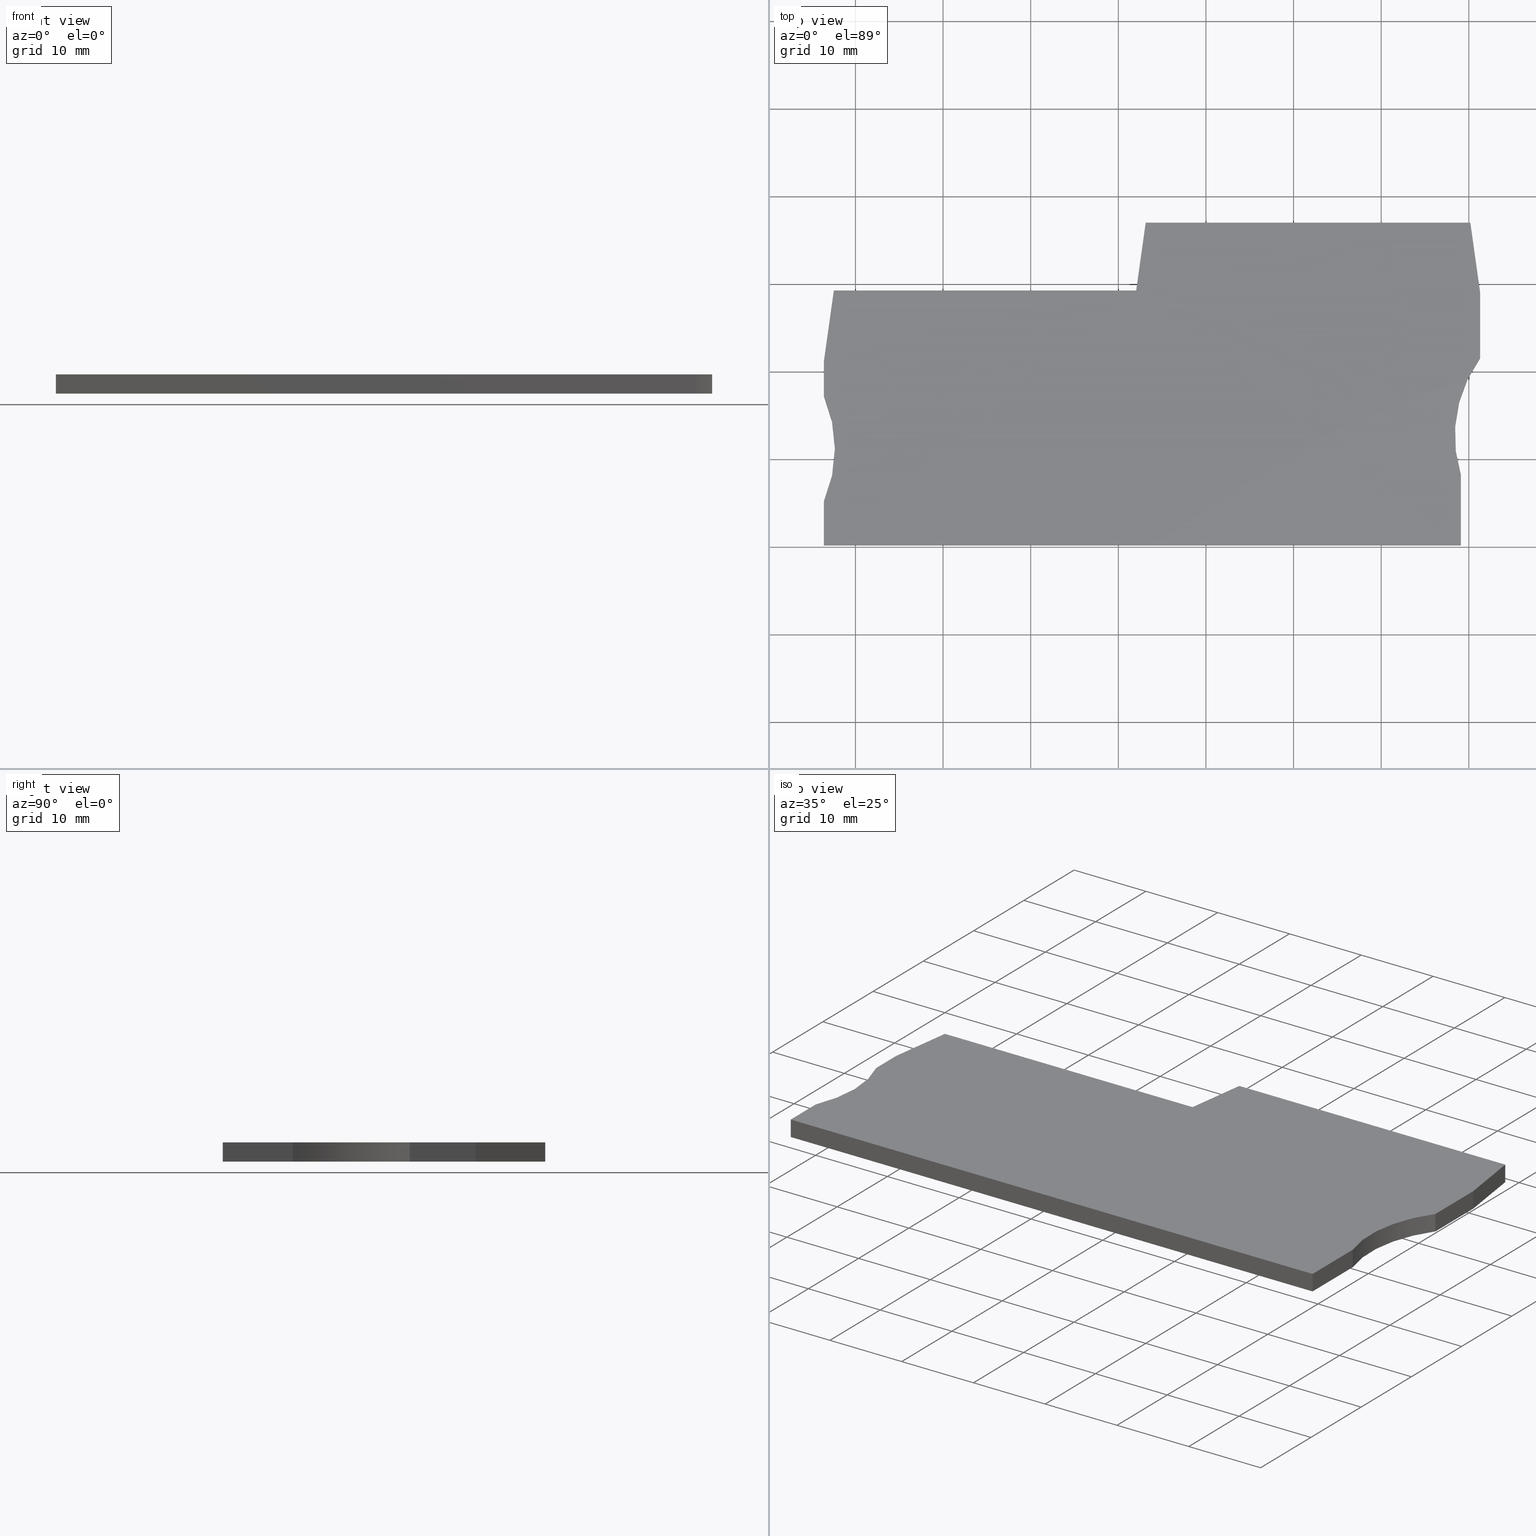
[diagram: canonical four-view strip — front | top / right | iso, engineering-drawing reading convention]
A machine part, canonical four-view strip (front | top / right | iso — engineering-drawing reading convention). The complete STEP part file that produces these views, byte-faithful:
ISO-10303-21;
HEADER;
FILE_DESCRIPTION(('Creo Elements/Direct Modeling STEP Export'),'2;1');
FILE_NAME(
'D:/temp/JobSpoolerServerData/JobServer Files/0f0131de-e3f1-4c06-b847-67
fc6506abc0/work/output/model.stp','2018-03-20T 7:21:26',(''),(''),
'Creo Elements/Direct Modeling STEP processor for AP214 (Solid Model)',
'Creo Elements/Direct Modeling 18.1I  14-Aug-2016 (C) Parametric Technol
ogy GmbH','');
FILE_SCHEMA(('AUTOMOTIVE_DESIGN { 1 0 10303 214 1 1 1 1 }'));
ENDSEC;
DATA;
#10=CARTESIAN_POINT('',(45.7256927655513,-71.5394447859624,
-8.10000000006716));
#20=DIRECTION('',(-2.83162617508304E-12,-8.65946784951905E-13,1.));
#30=DIRECTION('',(1.,0.,2.83162617508304E-12));
#40=AXIS2_PLACEMENT_3D('',#10,#20,#30);
#50=PLANE('',#40);
#60=CARTESIAN_POINT('',(0.982842522725191,0.,-8.1000000001319));
#70=DIRECTION('',(-8.32667261785385E-17,-1.,-8.65946784951905E-13));
#80=VECTOR('',#70,1.);
#90=LINE('',#60,#80);
#100=CARTESIAN_POINT('',(0.982842522725186,-65.5405475857204,
-8.10000000018866));
#110=VERTEX_POINT('',#100);
#120=CARTESIAN_POINT('',(0.982842522725185,-70.5405469120415,
-8.10000000019299));
#130=VERTEX_POINT('',#120);
#140=EDGE_CURVE('',#110,#130,#90,.T.);
#150=ORIENTED_EDGE('',*,*,#140,.T.);
#160=CARTESIAN_POINT('',(0.,-65.5405475857204,-8.10000000019144));
#170=DIRECTION('',(1.,-1.57479355876184E-24,2.83162617508304E-12));
#180=VECTOR('',#170,1.);
#190=LINE('',#160,#180);
#200=CARTESIAN_POINT('',(73.6828428310876,-65.5405475857204,
-8.0999999999828));
#210=VERTEX_POINT('',#200);
#220=EDGE_CURVE('',#110,#210,#190,.T.);
#230=ORIENTED_EDGE('',*,*,#220,.F.);
#240=CARTESIAN_POINT('',(73.6828428311077,0.,-8.09999999992604));
#250=DIRECTION('',(3.05588887526906E-13,1.,8.65946784952771E-13));
#260=VECTOR('',#250,1.);
#270=LINE('',#240,#260);
#280=CARTESIAN_POINT('',(73.6828428310852,-73.5405475856063,
-8.09999999998973));
#290=VERTEX_POINT('',#280);
#300=EDGE_CURVE('',#290,#210,#270,.T.);
#310=ORIENTED_EDGE('',*,*,#300,.T.);
#320=CARTESIAN_POINT('',(87.9919308523366,-78.0405475856153,
-8.09999999995311));
#330=DIRECTION('',(-2.83162617508304E-12,-8.65946784951905E-13,1.));
#340=DIRECTION('',(-1.,3.09030578906421E-13,-2.83162617508277E-12));
#350=AXIS2_PLACEMENT_3D('',#320,#330,#340);
#360=CIRCLE('',#350,15.);
#370=CARTESIAN_POINT('',(75.8735428960719,-86.8804951726465,
-8.09999999999508));
#380=VERTEX_POINT('',#370);
#390=EDGE_CURVE('',#290,#380,#360,.T.);
#400=ORIENTED_EDGE('',*,*,#390,.F.);
#410=CARTESIAN_POINT('',(75.8735428960987,0.,-8.09999999991984));
#420=DIRECTION('',(3.09058334478859E-13,1.,8.6594678495278E-13));
#430=VECTOR('',#420,1.);
#440=LINE('',#410,#430);
#450=CARTESIAN_POINT('',(75.8735428960695,-94.3980751947144,
-8.10000000000158));
#460=VERTEX_POINT('',#450);
#470=EDGE_CURVE('',#460,#380,#440,.T.);
#480=ORIENTED_EDGE('',*,*,#470,.T.);
#490=CARTESIAN_POINT('',(89.1403271958198,0.,-8.09999999988227));
#500=DIRECTION('',(0.139173101140975,0.990268068716145,
1.25159604902336E-12));
#510=VECTOR('',#500,1.);
#520=LINE('',#490,#510);
#530=CARTESIAN_POINT('',(74.7573011951507,-102.340547585767,
-8.10000000001162));
#540=VERTEX_POINT('',#530);
#550=EDGE_CURVE('',#540,#460,#520,.T.);
#560=ORIENTED_EDGE('',*,*,#550,.T.);
#570=CARTESIAN_POINT('',(0.,-102.340547585536,-8.10000000022331));
#580=DIRECTION('',(-1.,3.09291481312143E-12,-2.83162617508036E-12));
#590=VECTOR('',#580,1.);
#600=LINE('',#570,#590);
#610=CARTESIAN_POINT('',(37.7083844376541,-102.340547585652,
-8.10000000011653));
#620=VERTEX_POINT('',#610);
#630=EDGE_CURVE('',#540,#620,#600,.T.);
#640=ORIENTED_EDGE('',*,*,#630,.F.);
#650=CARTESIAN_POINT('',(23.3253584560903,0.,-8.10000000006864));
#660=DIRECTION('',(0.139173100959842,-0.990268068741602,
-4.63434846054156E-13));
#670=VECTOR('',#660,1.);
#680=LINE('',#650,#670);
#690=CARTESIAN_POINT('',(36.6191929687223,-94.5905475857231,
-8.1000000001129));
#700=VERTEX_POINT('',#690);
#710=EDGE_CURVE('',#700,#620,#680,.T.);
#720=ORIENTED_EDGE('',*,*,#710,.T.);
#730=CARTESIAN_POINT('',(0.,-94.590547585728,-8.1000000002166));
#740=DIRECTION('',(1.,1.3294920720348E-13,2.83162617508315E-12));
#750=VECTOR('',#740,1.);
#760=LINE('',#730,#750);
#770=CARTESIAN_POINT('',(2.11693877514894,-94.5905475857277,
-8.1000000002106));
#780=VERTEX_POINT('',#770);
#790=EDGE_CURVE('',#780,#700,#760,.T.);
#800=ORIENTED_EDGE('',*,*,#790,.T.);
#810=CARTESIAN_POINT('',(-11.1768957375052,0.,-8.10000000016633));
#820=DIRECTION('',(0.139173100960062,-0.990268068741571,
-4.63434846054156E-13));
#830=VECTOR('',#820,1.);
#840=LINE('',#810,#830);
#850=CARTESIAN_POINT('',(0.982842831434896,-86.5210356455458,
-8.10000000020682));
#860=VERTEX_POINT('',#850);
#870=EDGE_CURVE('',#860,#780,#840,.T.);
#880=ORIENTED_EDGE('',*,*,#870,.T.);
#890=CARTESIAN_POINT('',(0.982842831434491,0.,-8.1000000001319));
#900=DIRECTION('',(-2.77555749472302E-17,-1.,-8.65946784951905E-13));
#910=VECTOR('',#900,1.);
#920=LINE('',#890,#910);
#930=CARTESIAN_POINT('',(0.982842831434489,-82.5405475520312,
-8.10000000020338));
#940=VERTEX_POINT('',#930);
#950=EDGE_CURVE('',#940,#860,#920,.T.);
#960=ORIENTED_EDGE('',*,*,#950,.T.);
#970=CARTESIAN_POINT('',(-12.7648842681305,-76.5405475857073,
-8.10000000023711));
#980=DIRECTION('',(-2.83162617508304E-12,-8.65946784951905E-13,1.));
#990=DIRECTION('',(-1.,2.97190732927072E-25,-2.83162617508304E-12));
#1000=AXIS2_PLACEMENT_3D('',#970,#980,#990);
#1010=CIRCLE('',#1000,15.);
#1020=EDGE_CURVE('',#940,#130,#1010,.T.);
#1030=ORIENTED_EDGE('',*,*,#1020,.F.);
#1040=EDGE_LOOP('',(#1030,#960,#880,#800,#720,#640,#560,#480,#400,#310,
#230,#150));
#1050=FACE_OUTER_BOUND('',#1040,.T.);
#1060=ADVANCED_FACE('',(#1050),#50,.T.);
#1070=COLOUR_RGB('',0.560784339904785,0.588235318660736,
0.600000023841858);
#1080=FILL_AREA_STYLE_COLOUR('',#1070);
#1090=FILL_AREA_STYLE('',(#1080));
#1100=SURFACE_STYLE_FILL_AREA(#1090);
#1110=SURFACE_SIDE_STYLE('',(#1100));
#1120=SURFACE_STYLE_USAGE(.BOTH.,#1110);
#1130=PRESENTATION_STYLE_ASSIGNMENT((#1120));
#1140=CARTESIAN_POINT('',(36.7963789996401,-94.0971981712749,
-10.299999999977));
#1150=DIRECTION('',(1.62231146262328E-12,-2.6511546362151E-13,-1.));
#1160=DIRECTION('',(1.,-1.75082170981058E-13,1.62231146262333E-12));
#1170=AXIS2_PLACEMENT_3D('',#1140,#1150,#1160);
#1180=PLANE('',#1170);
#1190=CARTESIAN_POINT('',(-12.7648842681243,-76.5405475857054,
-10.300000000062));
#1200=DIRECTION('',(-2.83162617508304E-12,-8.65946784951905E-13,1.));
#1210=DIRECTION('',(-1.,2.97190732927072E-25,-2.83162617508304E-12));
#1220=AXIS2_PLACEMENT_3D('',#1190,#1200,#1210);
#1230=CIRCLE('',#1220,15.);
#1240=CARTESIAN_POINT('',(0.982842831440719,-82.5405475520293,
-10.3000000000283));
#1250=VERTEX_POINT('',#1240);
#1260=CARTESIAN_POINT('',(0.982842522731413,-70.5405469120396,
-10.3000000000413));
#1270=VERTEX_POINT('',#1260);
#1280=EDGE_CURVE('',#1250,#1270,#1230,.T.);
#1290=ORIENTED_EDGE('',*,*,#1280,.T.);
#1300=CARTESIAN_POINT('',(0.982842831440721,0.,-10.30000000006));
#1310=DIRECTION('',(-2.7755578150056E-17,-1.,2.6511546362151E-13));
#1320=VECTOR('',#1310,1.);
#1330=LINE('',#1300,#1320);
#1340=CARTESIAN_POINT('',(0.982842831440717,-86.521035645541,
-10.3000000000371));
#1350=VERTEX_POINT('',#1340);
#1360=EDGE_CURVE('',#1250,#1350,#1330,.T.);
#1370=ORIENTED_EDGE('',*,*,#1360,.F.);
#1380=CARTESIAN_POINT('',(-11.1768957374987,0.,-10.3000000000797));
#1390=DIRECTION('',(0.139173100960062,-0.990268068741571,
4.88303841805759E-13));
#1400=VECTOR('',#1390,1.);
#1410=LINE('',#1380,#1400);
#1420=CARTESIAN_POINT('',(2.11693877515517,-94.5905475857258,
-10.3000000000331));
#1430=VERTEX_POINT('',#1420);
#1440=EDGE_CURVE('',#1350,#1430,#1410,.T.);
#1450=ORIENTED_EDGE('',*,*,#1440,.F.);
#1460=CARTESIAN_POINT('',(0.,-94.5905475857261,-10.3000000000365));
#1470=DIRECTION('',(1.,1.32949207204527E-13,1.62231146262325E-12));
#1480=VECTOR('',#1470,1.);
#1490=LINE('',#1460,#1480);
#1500=CARTESIAN_POINT('',(36.6191929687286,-94.5905475857213,
-10.2999999999771));
#1510=VERTEX_POINT('',#1500);
#1520=EDGE_CURVE('',#1430,#1510,#1490,.T.);
#1530=ORIENTED_EDGE('',*,*,#1520,.F.);
#1540=CARTESIAN_POINT('',(23.3253584560968,0.,-10.3000000000238));
#1550=DIRECTION('',(0.139173100959842,-0.990268068741602,
4.88317719593567E-13));
#1560=VECTOR('',#1550,1.);
#1570=LINE('',#1540,#1560);
#1580=CARTESIAN_POINT('',(37.7083844376604,-102.34054758565,
-10.2999999999733));
#1590=VERTEX_POINT('',#1580);
#1600=EDGE_CURVE('',#1510,#1590,#1570,.T.);
#1610=ORIENTED_EDGE('',*,*,#1600,.F.);
#1620=CARTESIAN_POINT('',(0.,-102.340547585534,-10.3000000000345));
#1630=DIRECTION('',(1.,-3.09291481312038E-12,1.6223114626241E-12));
#1640=VECTOR('',#1630,1.);
#1650=LINE('',#1620,#1640);
#1660=CARTESIAN_POINT('',(74.7573011951569,-102.340547585765,
-10.2999999999132));
#1670=VERTEX_POINT('',#1660);
#1680=EDGE_CURVE('',#1590,#1670,#1650,.T.);
#1690=ORIENTED_EDGE('',*,*,#1680,.F.);
#1700=CARTESIAN_POINT('',(89.1403271958257,0.,-10.299999999917));
#1710=DIRECTION('',(0.139173101140975,0.990268068716145,
-3.67622599029005E-14));
#1720=VECTOR('',#1710,1.);
#1730=LINE('',#1700,#1720);
#1740=CARTESIAN_POINT('',(75.8735428960757,-94.3980751947125,
-10.2999999999135));
#1750=VERTEX_POINT('',#1740);
#1760=EDGE_CURVE('',#1670,#1750,#1730,.T.);
#1770=ORIENTED_EDGE('',*,*,#1760,.F.);
#1780=CARTESIAN_POINT('',(75.8735428961049,0.,-10.2999999999385));
#1790=DIRECTION('',(3.09058334482062E-13,1.,-2.65115463621008E-13));
#1800=VECTOR('',#1790,1.);
#1810=LINE('',#1780,#1800);
#1820=CARTESIAN_POINT('',(75.8735428960781,-86.8804951726446,
-10.2999999999155));
#1830=VERTEX_POINT('',#1820);
#1840=EDGE_CURVE('',#1750,#1830,#1810,.T.);
#1850=ORIENTED_EDGE('',*,*,#1840,.F.);
#1860=CARTESIAN_POINT('',(87.9919308523428,-78.0405475856134,
-10.2999999998982));
#1870=DIRECTION('',(-2.83162617508304E-12,-8.65946784951905E-13,1.));
#1880=DIRECTION('',(-1.,3.09030578906421E-13,-2.83162617508277E-12));
#1890=AXIS2_PLACEMENT_3D('',#1860,#1870,#1880);
#1900=CIRCLE('',#1890,15.);
#1910=CARTESIAN_POINT('',(73.6828428310914,-73.5405475856044,
-10.2999999999348));
#1920=VERTEX_POINT('',#1910);
#1930=EDGE_CURVE('',#1920,#1830,#1900,.T.);
#1940=ORIENTED_EDGE('',*,*,#1930,.T.);
#1950=CARTESIAN_POINT('',(73.6828428311139,0.,-10.2999999999421));
#1960=DIRECTION('',(3.05588887530108E-13,1.,-2.65115463621014E-13));
#1970=VECTOR('',#1960,1.);
#1980=LINE('',#1950,#1970);
#1990=CARTESIAN_POINT('',(73.6828428310939,-65.5405475857185,
-10.2999999999247));
#2000=VERTEX_POINT('',#1990);
#2010=EDGE_CURVE('',#1920,#2000,#1980,.T.);
#2020=ORIENTED_EDGE('',*,*,#2010,.F.);
#2030=CARTESIAN_POINT('',(0.,-65.5405475857185,-10.3000000000442));
#2040=DIRECTION('',(-1.,5.27893095999418E-25,-1.62231146262328E-12));
#2050=VECTOR('',#2040,1.);
#2060=LINE('',#2030,#2050);
#2070=CARTESIAN_POINT('',(0.982842522731415,-65.5405475857185,
-10.3000000000426));
#2080=VERTEX_POINT('',#2070);
#2090=EDGE_CURVE('',#2000,#2080,#2060,.T.);
#2100=ORIENTED_EDGE('',*,*,#2090,.F.);
#2110=CARTESIAN_POINT('',(0.982842522731421,0.,-10.30000000006));
#2120=DIRECTION('',(-8.32667293813391E-17,-1.,2.6511546362151E-13));
#2130=VECTOR('',#2120,1.);
#2140=LINE('',#2110,#2130);
#2150=EDGE_CURVE('',#2080,#1270,#2140,.T.);
#2160=ORIENTED_EDGE('',*,*,#2150,.F.);
#2170=EDGE_LOOP('',(#2160,#2100,#2020,#1940,#1850,#1770,#1690,#1610,
#1530,#1450,#1370,#1290));
#2180=FACE_OUTER_BOUND('',#2170,.T.);
#2190=ADVANCED_FACE('',(#2180),#1180,.T.);
#2200=COLOUR_RGB('',0.560784339904785,0.588235318660736,
0.600000023841858);
#2210=FILL_AREA_STYLE_COLOUR('',#2200);
#2220=FILL_AREA_STYLE('',(#2210));
#2230=SURFACE_STYLE_FILL_AREA(#2220);
#2240=SURFACE_SIDE_STYLE('',(#2230));
#2250=SURFACE_STYLE_USAGE(.BOTH.,#2240);
#2260=PRESENTATION_STYLE_ASSIGNMENT((#2250));
#2270=CARTESIAN_POINT('',(87.9919308523366,-78.0405475856153,
-8.09999999995311));
#2280=DIRECTION('',(-2.83162617508304E-12,-8.65946784951905E-13,1.));
#2290=DIRECTION('',(-1.,3.09030578906421E-13,-2.83162617508277E-12));
#2300=AXIS2_PLACEMENT_3D('',#2270,#2280,#2290);
#2310=CYLINDRICAL_SURFACE('',#2300,15.);
#2320=CARTESIAN_POINT('',(73.6828428310852,-73.5405475856063,
-8.09999999998973));
#2330=DIRECTION('',(-2.83162617508304E-12,-8.65946784951905E-13,1.));
#2340=VECTOR('',#2330,1.);
#2350=LINE('',#2320,#2340);
#2360=EDGE_CURVE('',#1920,#290,#2350,.T.);
#2370=ORIENTED_EDGE('',*,*,#2360,.T.);
#2380=ORIENTED_EDGE('',*,*,#1930,.F.);
#2390=CARTESIAN_POINT('',(75.8735428960719,-86.8804951726465,
-8.09999999999508));
#2400=DIRECTION('',(-2.83162617508304E-12,-8.65946784951905E-13,1.));
#2410=VECTOR('',#2400,1.);
#2420=LINE('',#2390,#2410);
#2430=EDGE_CURVE('',#1830,#380,#2420,.T.);
#2440=ORIENTED_EDGE('',*,*,#2430,.F.);
#2450=ORIENTED_EDGE('',*,*,#390,.T.);
#2460=EDGE_LOOP('',(#2450,#2440,#2380,#2370));
#2470=FACE_OUTER_BOUND('',#2460,.T.);
#2480=ADVANCED_FACE('',(#2470),#2310,.F.);
#2490=COLOUR_RGB('',0.560784339904785,0.588235318660736,
0.600000023841858);
#2500=FILL_AREA_STYLE_COLOUR('',#2490);
#2510=FILL_AREA_STYLE('',(#2500));
#2520=SURFACE_STYLE_FILL_AREA(#2510);
#2530=SURFACE_SIDE_STYLE('',(#2520));
#2540=SURFACE_STYLE_USAGE(.BOTH.,#2530);
#2550=PRESENTATION_STYLE_ASSIGNMENT((#2540));
#2560=CARTESIAN_POINT('',(38.143027806561,-102.340547585654,
-8.1000000001153));
#2570=DIRECTION('',(-3.09291481311898E-12,-1.,-8.65946784960663E-13));
#2580=DIRECTION('',(-1.,3.09291481312143E-12,-2.83162617508036E-12));
#2590=AXIS2_PLACEMENT_3D('',#2560,#2570,#2580);
#2600=PLANE('',#2590);
#2610=CARTESIAN_POINT('',(74.7573011951277,-102.340547585774,0.));
#2620=DIRECTION('',(-2.83162617508304E-12,-8.65946784951905E-13,1.));
#2630=VECTOR('',#2620,1.);
#2640=LINE('',#2610,#2630);
#2650=EDGE_CURVE('',#1670,#540,#2640,.T.);
#2660=ORIENTED_EDGE('',*,*,#2650,.T.);
#2670=ORIENTED_EDGE('',*,*,#1680,.T.);
#2680=CARTESIAN_POINT('',(37.7083844376312,-102.340547585659,0.));
#2690=DIRECTION('',(-2.83162617508304E-12,-8.65946784951905E-13,1.));
#2700=VECTOR('',#2690,1.);
#2710=LINE('',#2680,#2700);
#2720=EDGE_CURVE('',#1590,#620,#2710,.T.);
#2730=ORIENTED_EDGE('',*,*,#2720,.F.);
#2740=ORIENTED_EDGE('',*,*,#630,.T.);
#2750=EDGE_LOOP('',(#2740,#2730,#2670,#2660));
#2760=FACE_OUTER_BOUND('',#2750,.T.);
#2770=ADVANCED_FACE('',(#2760),#2600,.T.);
#2780=COLOUR_RGB('',0.560784339904785,0.588235318660736,
0.600000023841858);
#2790=FILL_AREA_STYLE_COLOUR('',#2780);
#2800=FILL_AREA_STYLE('',(#2790));
#2810=SURFACE_STYLE_FILL_AREA(#2800);
#2820=SURFACE_SIDE_STYLE('',(#2810));
#2830=SURFACE_STYLE_USAGE(.BOTH.,#2820);
#2840=PRESENTATION_STYLE_ASSIGNMENT((#2830));
#2850=CARTESIAN_POINT('',(73.6828428310853,-73.2432933798129,
-8.09999999998947));
#2860=DIRECTION('',(1.,-3.05588887529358E-13,2.83162617508277E-12));
#2870=DIRECTION('',(-3.05588887526906E-13,-1.,-8.65946784952771E-13));
#2880=AXIS2_PLACEMENT_3D('',#2850,#2860,#2870);
#2890=PLANE('',#2880);
#2900=CARTESIAN_POINT('',(73.6828428310647,-65.5405475857275,0.));
#2910=DIRECTION('',(-2.83162617508304E-12,-8.65946784951905E-13,1.));
#2920=VECTOR('',#2910,1.);
#2930=LINE('',#2900,#2920);
#2940=EDGE_CURVE('',#2000,#210,#2930,.T.);
#2950=ORIENTED_EDGE('',*,*,#2940,.T.);
#2960=ORIENTED_EDGE('',*,*,#2010,.T.);
#2970=ORIENTED_EDGE('',*,*,#2360,.F.);
#2980=ORIENTED_EDGE('',*,*,#300,.F.);
#2990=EDGE_LOOP('',(#2980,#2970,#2960,#2950));
#3000=FACE_OUTER_BOUND('',#2990,.T.);
#3010=ADVANCED_FACE('',(#3000),#2890,.T.);
#3020=COLOUR_RGB('',0.560784339904785,0.588235318660736,
0.600000023841858);
#3030=FILL_AREA_STYLE_COLOUR('',#3020);
#3040=FILL_AREA_STYLE('',(#3030));
#3050=SURFACE_STYLE_FILL_AREA(#3040);
#3060=SURFACE_SIDE_STYLE('',(#3050));
#3070=SURFACE_STYLE_USAGE(.BOTH.,#3060);
#3080=PRESENTATION_STYLE_ASSIGNMENT((#3070));
#3090=CARTESIAN_POINT('',(36.6191929687213,-94.5905475857159,
-8.1000000001129));
#3100=DIRECTION('',(-0.990268068741602,-0.139173100959842,
-2.92458548312561E-12));
#3110=DIRECTION('',(-0.139173100959842,0.990268068741602,
4.6343325482196E-13));
#3120=AXIS2_PLACEMENT_3D('',#3090,#3100,#3110);
#3130=PLANE('',#3120);
#3140=ORIENTED_EDGE('',*,*,#2720,.T.);
#3150=ORIENTED_EDGE('',*,*,#1600,.T.);
#3160=CARTESIAN_POINT('',(36.6191929686994,-94.5905475857302,0.));
#3170=DIRECTION('',(2.83162617508304E-12,8.65946784951905E-13,-1.));
#3180=VECTOR('',#3170,1.);
#3190=LINE('',#3160,#3180);
#3200=EDGE_CURVE('',#700,#1510,#3190,.T.);
#3210=ORIENTED_EDGE('',*,*,#3200,.T.);
#3220=ORIENTED_EDGE('',*,*,#710,.F.);
#3230=EDGE_LOOP('',(#3220,#3210,#3150,#3140));
#3240=FACE_OUTER_BOUND('',#3230,.T.);
#3250=ADVANCED_FACE('',(#3240),#3130,.T.);
#3260=COLOUR_RGB('',0.560784339904785,0.588235318660736,
0.600000023841858);
#3270=FILL_AREA_STYLE_COLOUR('',#3260);
#3280=FILL_AREA_STYLE('',(#3270));
#3290=SURFACE_STYLE_FILL_AREA(#3280);
#3300=SURFACE_SIDE_STYLE('',(#3290));
#3310=SURFACE_STYLE_USAGE(.BOTH.,#3300);
#3320=PRESENTATION_STYLE_ASSIGNMENT((#3310));
#3330=CARTESIAN_POINT('',(2.5515821440572,-94.5905475857277,
-8.10000000020937));
#3340=DIRECTION('',(1.32949207205932E-13,-1.,-8.65946784951529E-13));
#3350=DIRECTION('',(-1.,-1.3294920720348E-13,-2.83162617508315E-12));
#3360=AXIS2_PLACEMENT_3D('',#3330,#3340,#3350);
#3370=PLANE('',#3360);
#3380=ORIENTED_EDGE('',*,*,#790,.F.);
#3390=ORIENTED_EDGE('',*,*,#3200,.F.);
#3400=ORIENTED_EDGE('',*,*,#1520,.T.);
#3410=CARTESIAN_POINT('',(2.11693877512601,-94.5905475857348,0.));
#3420=DIRECTION('',(-2.83162617508304E-12,-8.65946784951905E-13,1.));
#3430=VECTOR('',#3420,1.);
#3440=LINE('',#3410,#3430);
#3450=EDGE_CURVE('',#1430,#780,#3440,.T.);
#3460=ORIENTED_EDGE('',*,*,#3450,.F.);
#3470=EDGE_LOOP('',(#3460,#3400,#3390,#3380));
#3480=FACE_OUTER_BOUND('',#3470,.T.);
#3490=ADVANCED_FACE('',(#3480),#3370,.T.);
#3500=COLOUR_RGB('',0.560784339904785,0.588235318660736,
0.600000023841858);
#3510=FILL_AREA_STYLE_COLOUR('',#3500);
#3520=FILL_AREA_STYLE('',(#3510));
#3530=SURFACE_STYLE_FILL_AREA(#3520);
#3540=SURFACE_SIDE_STYLE('',(#3530));
#3550=SURFACE_STYLE_USAGE(.BOTH.,#3540);
#3560=PRESENTATION_STYLE_ASSIGNMENT((#3550));
#3570=CARTESIAN_POINT('',(75.8735428960695,-94.3980751947146,
-8.10000000000159));
#3580=DIRECTION('',(1.,-3.09058334481311E-13,2.83162617508277E-12));
#3590=DIRECTION('',(-3.09058334478859E-13,-1.,-8.6594678495278E-13));
#3600=AXIS2_PLACEMENT_3D('',#3570,#3580,#3590);
#3610=PLANE('',#3600);
#3620=ORIENTED_EDGE('',*,*,#2430,.T.);
#3630=ORIENTED_EDGE('',*,*,#1840,.T.);
#3640=CARTESIAN_POINT('',(75.8735428960466,-94.3980751947215,0.));
#3650=DIRECTION('',(2.83162617508304E-12,8.65946784951904E-13,-1.));
#3660=VECTOR('',#3650,1.);
#3670=LINE('',#3640,#3660);
#3680=EDGE_CURVE('',#460,#1750,#3670,.T.);
#3690=ORIENTED_EDGE('',*,*,#3680,.T.);
#3700=ORIENTED_EDGE('',*,*,#470,.F.);
#3710=EDGE_LOOP('',(#3700,#3690,#3630,#3620));
#3720=FACE_OUTER_BOUND('',#3710,.T.);
#3730=ADVANCED_FACE('',(#3720),#3610,.T.);
#3740=COLOUR_RGB('',0.560784339904785,0.588235318660736,
0.600000023841858);
#3750=FILL_AREA_STYLE_COLOUR('',#3740);
#3760=FILL_AREA_STYLE('',(#3750));
#3770=SURFACE_STYLE_FILL_AREA(#3760);
#3780=SURFACE_SIDE_STYLE('',(#3770));
#3790=SURFACE_STYLE_USAGE(.BOTH.,#3780);
#3800=PRESENTATION_STYLE_ASSIGNMENT((#3790));
#3810=CARTESIAN_POINT('',(0.982842831434915,-86.521035645546,
-8.10000000020683));
#3820=DIRECTION('',(-0.990268068741571,-0.139173100960062,
-2.92458548312571E-12));
#3830=DIRECTION('',(-0.139173100960062,0.990268068741571,
4.6343325482131E-13));
#3840=AXIS2_PLACEMENT_3D('',#3810,#3820,#3830);
#3850=PLANE('',#3840);
#3860=ORIENTED_EDGE('',*,*,#3450,.T.);
#3870=ORIENTED_EDGE('',*,*,#1440,.T.);
#3880=CARTESIAN_POINT('',(0.982842831411553,-86.52103564555,0.));
#3890=DIRECTION('',(2.83162617508304E-12,8.65946784951905E-13,-1.));
#3900=VECTOR('',#3890,1.);
#3910=LINE('',#3880,#3900);
#3920=EDGE_CURVE('',#860,#1350,#3910,.T.);
#3930=ORIENTED_EDGE('',*,*,#3920,.T.);
#3940=ORIENTED_EDGE('',*,*,#870,.F.);
#3950=EDGE_LOOP('',(#3940,#3930,#3870,#3860));
#3960=FACE_OUTER_BOUND('',#3950,.T.);
#3970=ADVANCED_FACE('',(#3960),#3850,.T.);
#3980=COLOUR_RGB('',0.560784339904785,0.588235318660736,
0.600000023841858);
#3990=FILL_AREA_STYLE_COLOUR('',#3980);
#4000=FILL_AREA_STYLE('',(#3990));
#4010=SURFACE_STYLE_FILL_AREA(#4000);
#4020=SURFACE_SIDE_STYLE('',(#4010));
#4030=SURFACE_STYLE_USAGE(.BOTH.,#4020);
#4040=PRESENTATION_STYLE_ASSIGNMENT((#4030));
#4050=CARTESIAN_POINT('',(0.982842831434489,-82.9446241892012,
-8.10000000020373));
#4060=DIRECTION('',(-1.,2.77555773993622E-17,-2.83162617508304E-12));
#4070=DIRECTION('',(2.77555749473246E-17,1.,8.65946784951905E-13));
#4080=AXIS2_PLACEMENT_3D('',#4050,#4060,#4070);
#4090=PLANE('',#4080);
#4100=ORIENTED_EDGE('',*,*,#950,.F.);
#4110=ORIENTED_EDGE('',*,*,#3920,.F.);
#4120=ORIENTED_EDGE('',*,*,#1360,.T.);
#4130=CARTESIAN_POINT('',(0.982842831434489,-82.5405475520312,
-8.10000000020338));
#4140=DIRECTION('',(-2.83162617508304E-12,-8.65946784951905E-13,1.));
#4150=VECTOR('',#4140,1.);
#4160=LINE('',#4130,#4150);
#4170=EDGE_CURVE('',#1250,#940,#4160,.T.);
#4180=ORIENTED_EDGE('',*,*,#4170,.F.);
#4190=EDGE_LOOP('',(#4180,#4120,#4110,#4100));
#4200=FACE_OUTER_BOUND('',#4190,.T.);
#4210=ADVANCED_FACE('',(#4200),#4090,.T.);
#4220=COLOUR_RGB('',0.560784339904785,0.588235318660736,
0.600000023841858);
#4230=FILL_AREA_STYLE_COLOUR('',#4220);
#4240=FILL_AREA_STYLE('',(#4230));
#4250=SURFACE_STYLE_FILL_AREA(#4240);
#4260=SURFACE_SIDE_STYLE('',(#4250));
#4270=SURFACE_STYLE_USAGE(.BOTH.,#4260);
#4280=PRESENTATION_STYLE_ASSIGNMENT((#4270));
#4290=CARTESIAN_POINT('',(74.817791860707,-101.910134136151,
-8.10000000001108));
#4300=DIRECTION('',(0.990268068716145,-0.139173101140975,
2.68355248424075E-12));
#4310=DIRECTION('',(-0.139173101140975,-0.990268068716145,
-1.25160564640354E-12));
#4320=AXIS2_PLACEMENT_3D('',#4290,#4300,#4310);
#4330=PLANE('',#4320);
#4340=ORIENTED_EDGE('',*,*,#550,.F.);
#4350=ORIENTED_EDGE('',*,*,#3680,.F.);
#4360=ORIENTED_EDGE('',*,*,#1760,.T.);
#4370=ORIENTED_EDGE('',*,*,#2650,.F.);
#4380=EDGE_LOOP('',(#4370,#4360,#4350,#4340));
#4390=FACE_OUTER_BOUND('',#4380,.T.);
#4400=ADVANCED_FACE('',(#4390),#4330,.T.);
#4410=COLOUR_RGB('',0.560784339904785,0.588235318660736,
0.600000023841858);
#4420=FILL_AREA_STYLE_COLOUR('',#4410);
#4430=FILL_AREA_STYLE('',(#4420));
#4440=SURFACE_STYLE_FILL_AREA(#4430);
#4450=SURFACE_SIDE_STYLE('',(#4440));
#4460=SURFACE_STYLE_USAGE(.BOTH.,#4450);
#4470=PRESENTATION_STYLE_ASSIGNMENT((#4460));
#4480=CARTESIAN_POINT('',(-12.7648842681305,-76.5405475857073,
-8.10000000023711));
#4490=DIRECTION('',(-2.83162617508304E-12,-8.65946784951905E-13,1.));
#4500=DIRECTION('',(-1.,2.97190732927072E-25,-2.83162617508304E-12));
#4510=AXIS2_PLACEMENT_3D('',#4480,#4490,#4500);
#4520=CYLINDRICAL_SURFACE('',#4510,15.);
#4530=ORIENTED_EDGE('',*,*,#1020,.T.);
#4540=ORIENTED_EDGE('',*,*,#4170,.T.);
#4550=ORIENTED_EDGE('',*,*,#1280,.F.);
#4560=CARTESIAN_POINT('',(0.982842522725189,-70.5405469120415,
-8.10000000019299));
#4570=DIRECTION('',(-2.83162617508304E-12,-8.65946784951905E-13,1.));
#4580=VECTOR('',#4570,1.);
#4590=LINE('',#4560,#4580);
#4600=EDGE_CURVE('',#1270,#130,#4590,.T.);
#4610=ORIENTED_EDGE('',*,*,#4600,.F.);
#4620=EDGE_LOOP('',(#4610,#4550,#4540,#4530));
#4630=FACE_OUTER_BOUND('',#4620,.T.);
#4640=ADVANCED_FACE('',(#4630),#4520,.F.);
#4650=COLOUR_RGB('',0.560784339904785,0.588235318660736,
0.600000023841858);
#4660=FILL_AREA_STYLE_COLOUR('',#4650);
#4670=FILL_AREA_STYLE('',(#4660));
#4680=SURFACE_STYLE_FILL_AREA(#4670);
#4690=SURFACE_SIDE_STYLE('',(#4680));
#4700=SURFACE_STYLE_USAGE(.BOTH.,#4690);
#4710=PRESENTATION_STYLE_ASSIGNMENT((#4700));
#4720=CARTESIAN_POINT('',(72.6828431394459,-65.5405475857204,
-8.09999999998563));
#4730=DIRECTION('',(-8.77087012411711E-25,1.,8.65946784951905E-13));
#4740=DIRECTION('',(1.,-1.57495057008711E-24,2.83162617508304E-12));
#4750=AXIS2_PLACEMENT_3D('',#4720,#4730,#4740);
#4760=PLANE('',#4750);
#4770=CARTESIAN_POINT('',(0.982842522702249,-65.5405475857275,0.));
#4780=DIRECTION('',(-2.83162617508304E-12,-8.65946784951905E-13,1.));
#4790=VECTOR('',#4780,1.);
#4800=LINE('',#4770,#4790);
#4810=EDGE_CURVE('',#2080,#110,#4800,.T.);
#4820=ORIENTED_EDGE('',*,*,#4810,.T.);
#4830=ORIENTED_EDGE('',*,*,#2090,.T.);
#4840=ORIENTED_EDGE('',*,*,#2940,.F.);
#4850=ORIENTED_EDGE('',*,*,#220,.T.);
#4860=EDGE_LOOP('',(#4850,#4840,#4830,#4820));
#4870=FACE_OUTER_BOUND('',#4860,.T.);
#4880=ADVANCED_FACE('',(#4870),#4760,.T.);
#4890=COLOUR_RGB('',0.560784339904785,0.588235318660736,
0.600000023841858);
#4900=FILL_AREA_STYLE_COLOUR('',#4890);
#4910=FILL_AREA_STYLE('',(#4900));
#4920=SURFACE_STYLE_FILL_AREA(#4910);
#4930=SURFACE_SIDE_STYLE('',(#4920));
#4940=SURFACE_STYLE_USAGE(.BOTH.,#4930);
#4950=PRESENTATION_STYLE_ASSIGNMENT((#4940));
#4960=CARTESIAN_POINT('',(0.982842522725186,-66.540547585713,
-8.10000000018952));
#4970=DIRECTION('',(-1.,8.32667286306201E-17,-2.83162617508304E-12));
#4980=DIRECTION('',(8.32667261785825E-17,1.,8.65946784951905E-13));
#4990=AXIS2_PLACEMENT_3D('',#4960,#4970,#4980);
#5000=PLANE('',#4990);
#5010=ORIENTED_EDGE('',*,*,#4600,.T.);
#5020=ORIENTED_EDGE('',*,*,#2150,.T.);
#5030=ORIENTED_EDGE('',*,*,#4810,.F.);
#5040=ORIENTED_EDGE('',*,*,#140,.F.);
#5050=EDGE_LOOP('',(#5040,#5030,#5020,#5010));
#5060=FACE_OUTER_BOUND('',#5050,.T.);
#5070=ADVANCED_FACE('',(#5060),#5000,.T.);
#5080=COLOUR_RGB('',0.560784339904785,0.588235318660736,
0.600000023841858);
#5090=FILL_AREA_STYLE_COLOUR('',#5080);
#5100=FILL_AREA_STYLE('',(#5090));
#5110=SURFACE_STYLE_FILL_AREA(#5100);
#5120=SURFACE_SIDE_STYLE('',(#5110));
#5130=SURFACE_STYLE_USAGE(.BOTH.,#5120);
#5140=PRESENTATION_STYLE_ASSIGNMENT((#5130));
#5150=CLOSED_SHELL('',(#2480,#2770,#3010,#3250,#3490,#3730,#3970,#4210,
#4400,#4640,#4880,#5070,#2190,#1060));
#5160=MANIFOLD_SOLID_BREP('',#5150);
#5170=CARTESIAN_POINT('',(0.,0.,0.));
#5180=DIRECTION('',(0.,0.,1.));
#5190=DIRECTION('',(1.,0.,0.));
#5200=AXIS2_PLACEMENT_3D('',#5170,#5180,#5190);
#5210=APPLICATION_CONTEXT(' ');
#5220=APPLICATION_PROTOCOL_DEFINITION(' ','automotive_design',1998,#5210
);
#5230=PRODUCT_CONTEXT('',#5210,'mechanical');
#5240=PRODUCT_DEFINITION_CONTEXT('part definition',#5210,'design');
#5250=PRODUCT('D_STIO_25_3','D_STIO_25_3','',(#5230));
#5260=PRODUCT_RELATED_PRODUCT_CATEGORY('part',' ',(#5250));
#5270=PRODUCT_DEFINITION_FORMATION_WITH_SPECIFIED_SOURCE('','',#5250,
.BOUGHT.);
#5280=PRODUCT_DEFINITION('',' ',#5270,#5240);
#5290=PRODUCT_DEFINITION_SHAPE('','',#5280);
#5300=DIMENSIONAL_EXPONENTS(1.,0.,0.,0.,0.,0.,0.);
#5310=DIMENSIONAL_EXPONENTS(0.,0.,0.,0.,0.,0.,0.);
#5320=DIMENSIONAL_EXPONENTS(0.,0.,0.,0.,0.,0.,0.);
#5330=(LENGTH_UNIT() NAMED_UNIT(*) SI_UNIT(.MILLI.,.METRE.));
#5340=(NAMED_UNIT(*) PLANE_ANGLE_UNIT() SI_UNIT($,.RADIAN.));
#5350=(NAMED_UNIT(*) SI_UNIT($,.STERADIAN.) SOLID_ANGLE_UNIT());
#5360=(GEOMETRIC_REPRESENTATION_CONTEXT(3) 
GLOBAL_UNCERTAINTY_ASSIGNED_CONTEXT((#5370)) 
GLOBAL_UNIT_ASSIGNED_CONTEXT((#5330,#5340,#5350)) REPRESENTATION_CONTEXT
('',''));
#5370=UNCERTAINTY_MEASURE_WITH_UNIT(LENGTH_MEASURE(1.E-6),#5330,
'distance_accuracy_value','maximum gap value');
#5380=ADVANCED_BREP_SHAPE_REPRESENTATION('',(#5200,#5160),#5360);
#5390=SHAPE_DEFINITION_REPRESENTATION(#5290,#5380);
#5400=COLOUR_RGB('',0.560784339904785,0.588235318660736,
0.600000023841858);
#5410=FILL_AREA_STYLE_COLOUR('',#5400);
#5420=FILL_AREA_STYLE('',(#5410));
#5430=SURFACE_STYLE_FILL_AREA(#5420);
#5440=SURFACE_SIDE_STYLE('',(#5430));
#5450=SURFACE_STYLE_USAGE(.BOTH.,#5440);
#5460=PRESENTATION_STYLE_ASSIGNMENT((#5450));
#5470=STYLED_ITEM('',(#5460),#5160);
#5480=OVER_RIDING_STYLED_ITEM('',(#1130),#1060,#5470);
#5490=OVER_RIDING_STYLED_ITEM('',(#2260),#2190,#5470);
#5500=OVER_RIDING_STYLED_ITEM('',(#2550),#2480,#5470);
#5510=OVER_RIDING_STYLED_ITEM('',(#2840),#2770,#5470);
#5520=OVER_RIDING_STYLED_ITEM('',(#3080),#3010,#5470);
#5530=OVER_RIDING_STYLED_ITEM('',(#3320),#3250,#5470);
#5540=OVER_RIDING_STYLED_ITEM('',(#3560),#3490,#5470);
#5550=OVER_RIDING_STYLED_ITEM('',(#3800),#3730,#5470);
#5560=OVER_RIDING_STYLED_ITEM('',(#4040),#3970,#5470);
#5570=OVER_RIDING_STYLED_ITEM('',(#4280),#4210,#5470);
#5580=OVER_RIDING_STYLED_ITEM('',(#4470),#4400,#5470);
#5590=OVER_RIDING_STYLED_ITEM('',(#4710),#4640,#5470);
#5600=OVER_RIDING_STYLED_ITEM('',(#4950),#4880,#5470);
#5610=OVER_RIDING_STYLED_ITEM('',(#5140),#5070,#5470);
#5620=DRAUGHTING_MODEL('',(#5470,#5480,#5490,#5500,#5510,#5520,#5530,
#5540,#5550,#5560,#5570,#5580,#5590,#5600,#5610),#5360);
#5630=CARTESIAN_POINT('',(-54.5828428165754,-65.3405475860298,
-8.10000000004492));
#5640=DIRECTION('',(3.13939470179221E-12,-3.00709090106049E-13,-1.));
#5650=DIRECTION('',(1.,4.9621903808204E-12,3.13939470179071E-12));
#5660=AXIS2_PLACEMENT_3D('',#5630,#5640,#5650);
#5670=ITEM_DEFINED_TRANSFORMATION('D_STIO_25_3','',#5200,#5660);
#5680=APPLICATION_CONTEXT(' ');
#5690=APPLICATION_PROTOCOL_DEFINITION(' ','automotive_design',1998,#5680
);
#5700=PRODUCT_CONTEXT('',#5680,'mechanical');
#5710=PRODUCT_DEFINITION_CONTEXT('part definition',#5680,'design');
#5720=PRODUCT('D_STIO_25_3','D_STIO_25_3','',(#5700));
#5730=PRODUCT_RELATED_PRODUCT_CATEGORY('part',' ',(#5720));
#5740=PRODUCT_DEFINITION_FORMATION_WITH_SPECIFIED_SOURCE('','',#5720,
.BOUGHT.);
#5750=PRODUCT_DEFINITION('',' ',#5740,#5710);
#5760=PRODUCT_DEFINITION_SHAPE('','',#5750);
#5770=DIMENSIONAL_EXPONENTS(1.,0.,0.,0.,0.,0.,0.);
#5780=DIMENSIONAL_EXPONENTS(0.,0.,0.,0.,0.,0.,0.);
#5790=DIMENSIONAL_EXPONENTS(0.,0.,0.,0.,0.,0.,0.);
#5800=(LENGTH_UNIT() NAMED_UNIT(*) SI_UNIT(.MILLI.,.METRE.));
#5810=(NAMED_UNIT(*) PLANE_ANGLE_UNIT() SI_UNIT($,.RADIAN.));
#5820=(NAMED_UNIT(*) SI_UNIT($,.STERADIAN.) SOLID_ANGLE_UNIT());
#5830=(GEOMETRIC_REPRESENTATION_CONTEXT(3) 
GLOBAL_UNCERTAINTY_ASSIGNED_CONTEXT((#5840)) 
GLOBAL_UNIT_ASSIGNED_CONTEXT((#5800,#5810,#5820)) REPRESENTATION_CONTEXT
('',''));
#5840=UNCERTAINTY_MEASURE_WITH_UNIT(LENGTH_MEASURE(1.E-6),#5800,
'distance_accuracy_value','maximum gap value');
#5850=SHAPE_REPRESENTATION('',(#5200,#5660),#5830);
#5860=SHAPE_DEFINITION_REPRESENTATION(#5760,#5850);
#5870=(REPRESENTATION_RELATIONSHIP('','',#5380,#5850) 
REPRESENTATION_RELATIONSHIP_WITH_TRANSFORMATION(#5670) 
SHAPE_REPRESENTATION_RELATIONSHIP());
#5880=NEXT_ASSEMBLY_USAGE_OCCURRENCE('1','','D_STIO_25_3',#5750,#5280,''
);
#5890=PRODUCT_DEFINITION_SHAPE('','',#5880);
#5900=CONTEXT_DEPENDENT_SHAPE_REPRESENTATION(#5870,#5890);
ENDSEC;
END-ISO-10303-21;
